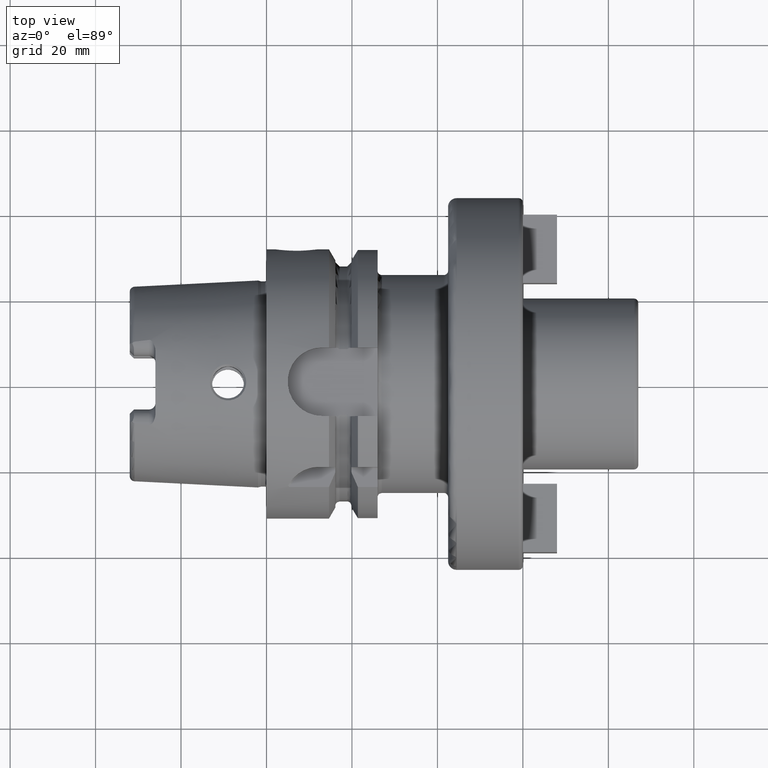
[diagram: clean part render]
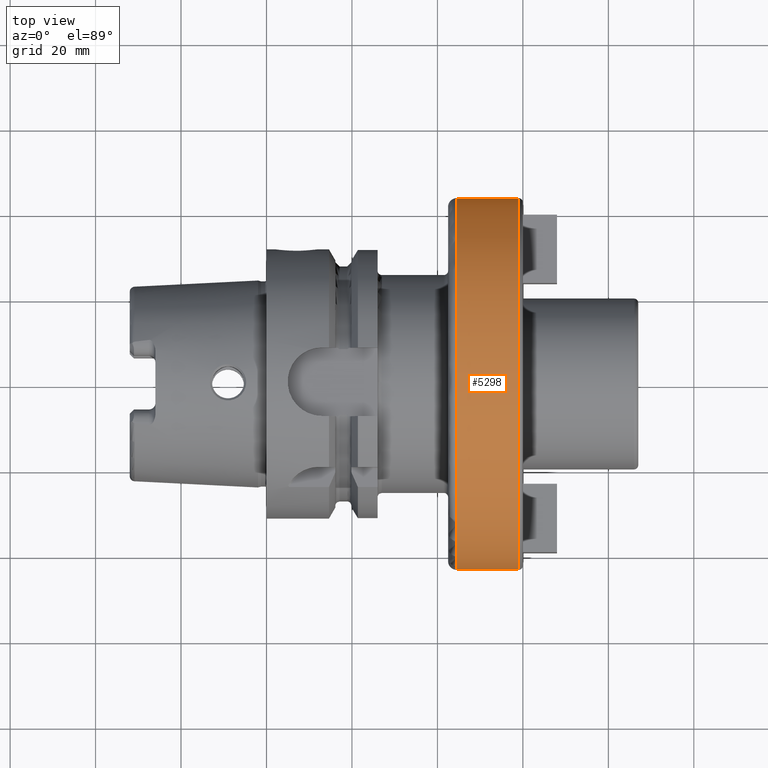
[diagram: same view with one face highlighted and labeled with its STEP entity id]
A machine part, top view. The second image highlights one B-rep face of the part: STEP entity #5298.
In plain terms, the highlighted cylindrical surface (partial cylindrical patch) has radius 43.5 mm, axis along (1, 0, 0).
Its self-contained STEP definition (entity closure, byte-faithful):
#1571=DIRECTION('',(-1.E0,0.E0,0.E0));
#1572=VECTOR('',#1571,1.45E1);
#1573=CARTESIAN_POINT('',(5.9E1,-4.35E1,3.235051608645E-14));
#1574=LINE('',#1573,#1572);
#1580=DIRECTION('',(-1.E0,0.E0,0.E0));
#1581=VECTOR('',#1580,1.45E1);
#1582=CARTESIAN_POINT('',(5.9E1,4.35E1,-3.368231948052E-14));
#1583=LINE('',#1582,#1581);
#1584=CARTESIAN_POINT('',(4.45E1,0.E0,0.E0));
#1585=DIRECTION('',(1.E0,0.E0,0.E0));
#1586=DIRECTION('',(0.E0,1.E0,0.E0));
#1587=AXIS2_PLACEMENT_3D('',#1584,#1585,#1586);
#1589=CARTESIAN_POINT('',(5.9E1,0.E0,0.E0));
#1590=DIRECTION('',(-1.E0,0.E0,0.E0));
#1591=DIRECTION('',(0.E0,-1.E0,0.E0));
#1592=AXIS2_PLACEMENT_3D('',#1589,#1590,#1591);
#3379=CARTESIAN_POINT('',(5.9E1,4.35E1,0.E0));
#3380=CARTESIAN_POINT('',(5.9E1,-4.35E1,-1.065442715258E-14));
#3381=VERTEX_POINT('',#3379);
#3382=VERTEX_POINT('',#3380);
#3480=CARTESIAN_POINT('',(4.45E1,-4.35E1,-1.065442715258E-14));
#3481=CARTESIAN_POINT('',(4.45E1,4.35E1,0.E0));
#3482=VERTEX_POINT('',#3480);
#3483=VERTEX_POINT('',#3481);
#5285=CARTESIAN_POINT('',(2.295E1,0.E0,0.E0));
#5286=DIRECTION('',(1.E0,0.E0,0.E0));
#5287=DIRECTION('',(0.E0,-1.E0,0.E0));
#5288=AXIS2_PLACEMENT_3D('',#5285,#5286,#5287);
#5289=CYLINDRICAL_SURFACE('',#5288,4.35E1);
#5291=ORIENTED_EDGE('',*,*,#5290,.F.);
#5292=ORIENTED_EDGE('',*,*,#5280,.F.);
#5294=ORIENTED_EDGE('',*,*,#5293,.F.);
#5295=ORIENTED_EDGE('',*,*,#5276,.T.);
#5296=EDGE_LOOP('',(#5291,#5292,#5294,#5295));
#5297=FACE_OUTER_BOUND('',#5296,.F.);
#5298=ADVANCED_FACE('',(#5297),#5289,.T.);
#1588=CIRCLE('',#1587,4.35E1);
#1593=CIRCLE('',#1592,4.35E1);
#5276=EDGE_CURVE('',#3382,#3482,#1574,.T.);
#5280=EDGE_CURVE('',#3381,#3483,#1583,.T.);
#5290=EDGE_CURVE('',#3483,#3482,#1588,.T.);
#5293=EDGE_CURVE('',#3382,#3381,#1593,.T.);